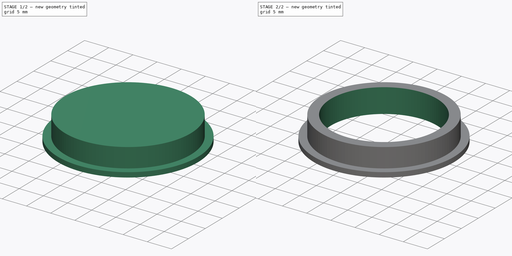
[diagram: build sequence overview — one tinted view per stage of 2, left to right]
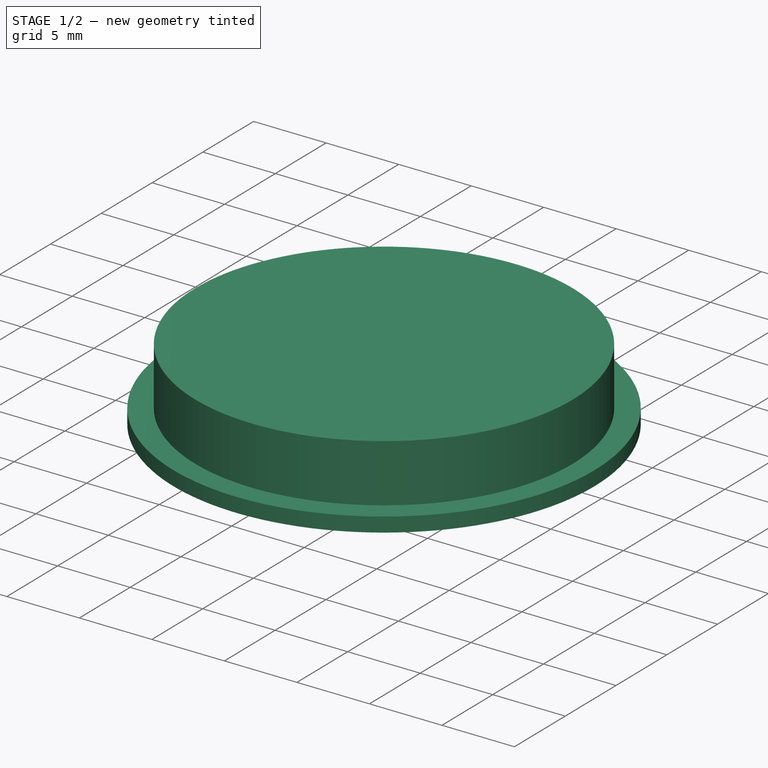
[diagram: stage 1 of 2 — iso view after this stage's code; geometry added in this stage tinted green]
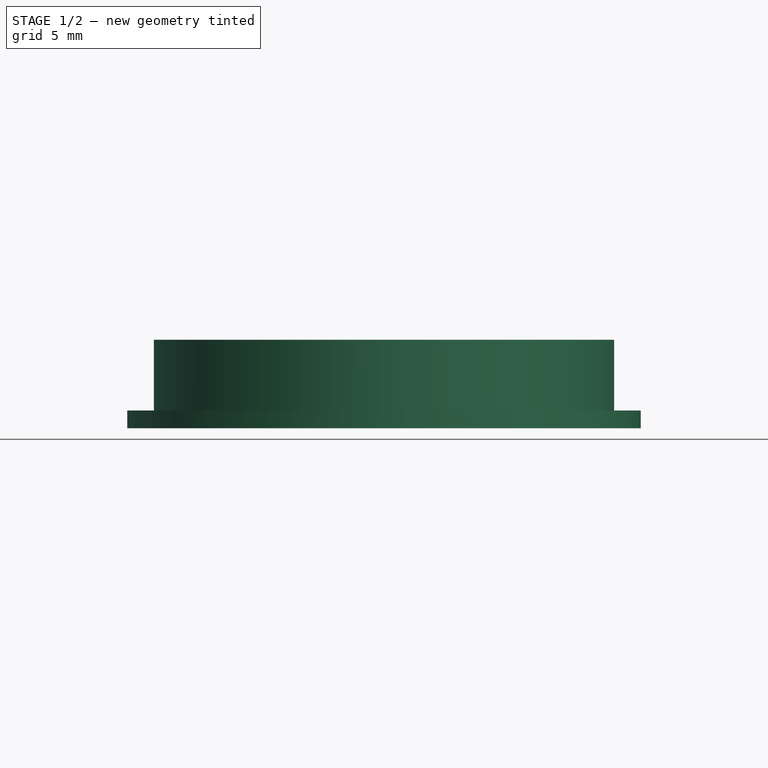
[diagram: stage 1 of 2 — front view after this stage's code; geometry added in this stage tinted green]
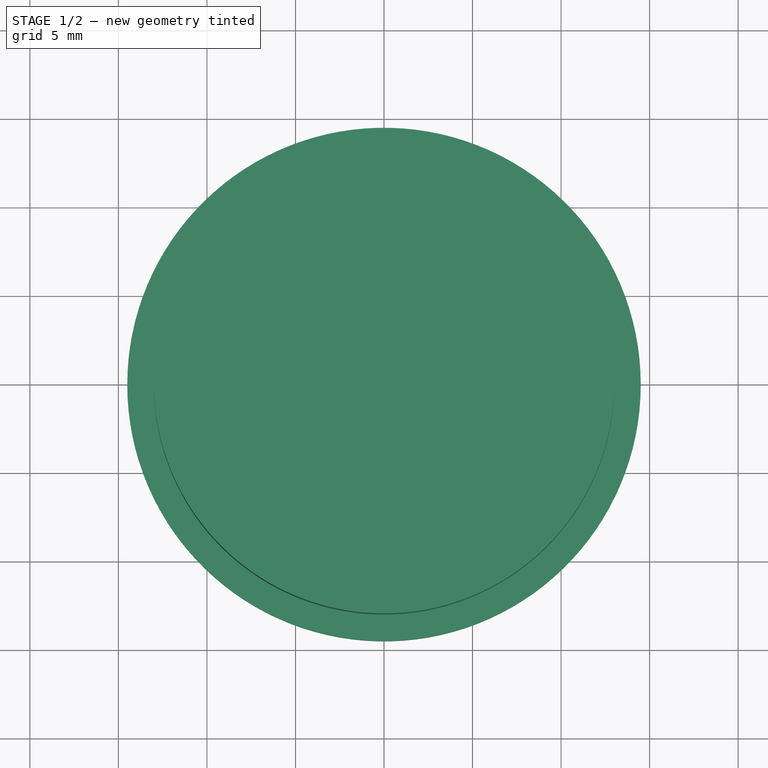
[diagram: stage 1 of 2 — top view after this stage's code; geometry added in this stage tinted green]
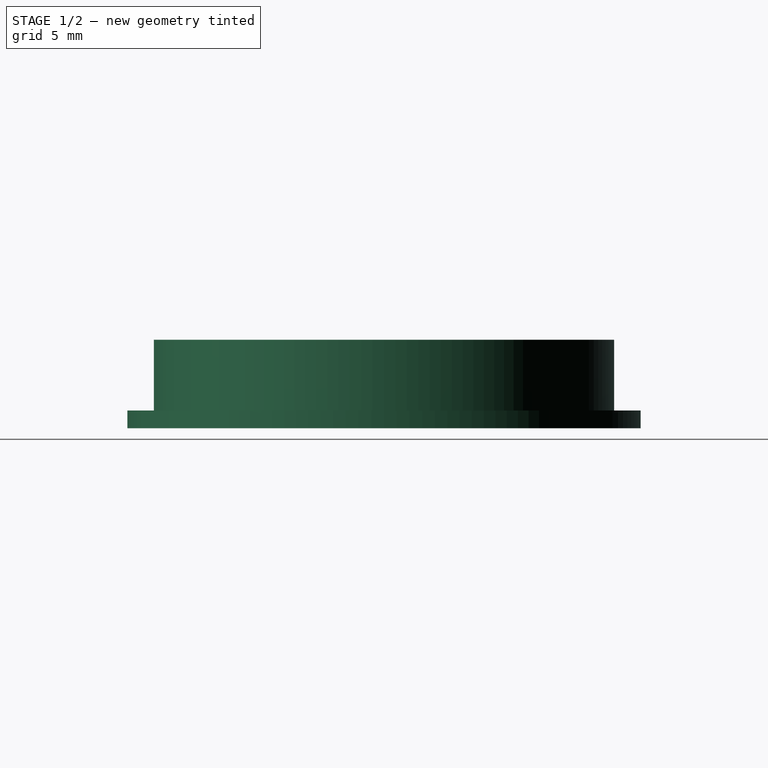
[diagram: stage 1 of 2 — right view after this stage's code; geometry added in this stage tinted green]
FCSTD DOCUMENT  (FreeCAD 0.16R6706 (Git))
Label: Montagering
License: All rights reserved
LicenseURL: http://de.wikipedia.org/wiki/Alle_Rechte_vorbehalten
objects: Sketcher::SketchObject×3, PartDesign::Pad×2, PartDesign::Pocket×1
note: 9 computed .brp shape members not serialized (recipe doc carries the construction recipe); baked Part::Feature solids carry a one-line shape summary decoded from their .brp

FEATURE [Sketcher::SketchObject] Sketch
  sketch-geometry (1):
    g0: Circle CenterX=0 CenterY=0 CenterZ=0 NormalX=0 NormalY=0 NormalZ=1 Radius=14.5
  constraints (2):
    c: Coincident(g0,g-1)
    c: Radius(g0) = 14.5
FEATURE [PartDesign::Pad] Pad
  Length = 1
  Length2 = 100
  Sketch = -> Sketch
  Type = 0
FEATURE [Sketcher::SketchObject] Sketch001
  Placement = pos=(0,0,1) rot=(0,0,1;0rad)
  Support = -> Pad [Face3]
  sketch-geometry (1):
    g0: Circle CenterX=0 CenterY=0 CenterZ=0 NormalX=0 NormalY=0 NormalZ=1 Radius=13
  constraints (2):
    c: Coincident(g0,g-1)
    c: Radius(g0) = 13
FEATURE [PartDesign::Pad] Pad001
  Length = 4
  Length2 = 100
  Sketch = -> Sketch001
  Type = 0
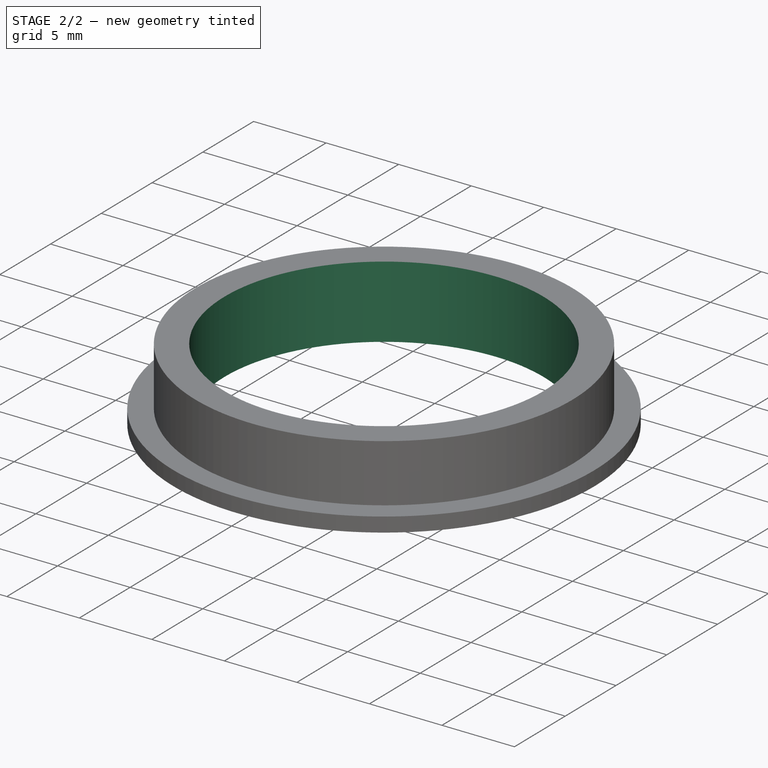
[diagram: stage 2 of 2 — iso view after this stage's code; geometry added in this stage tinted green]
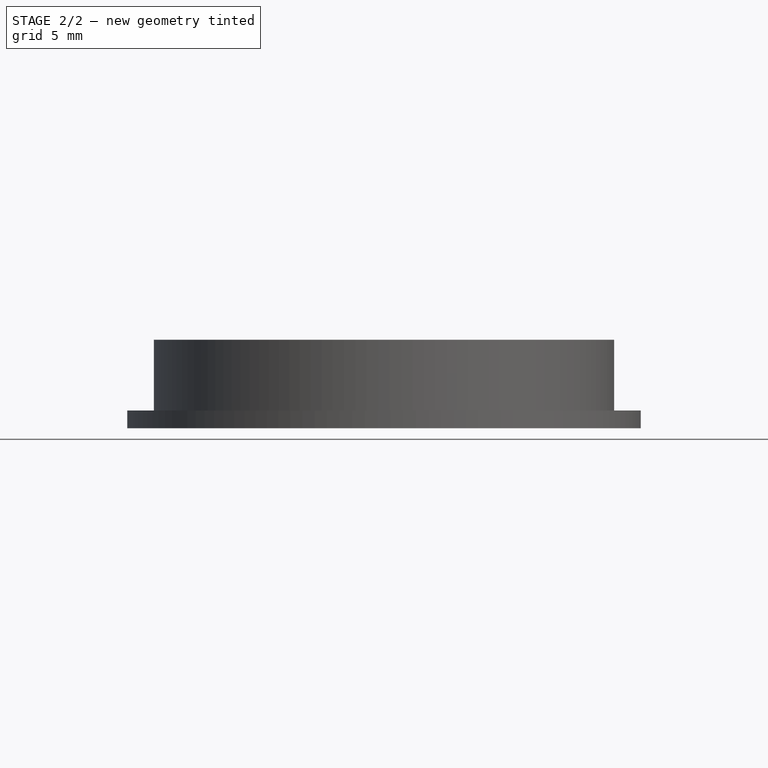
[diagram: stage 2 of 2 — front view after this stage's code; geometry added in this stage tinted green]
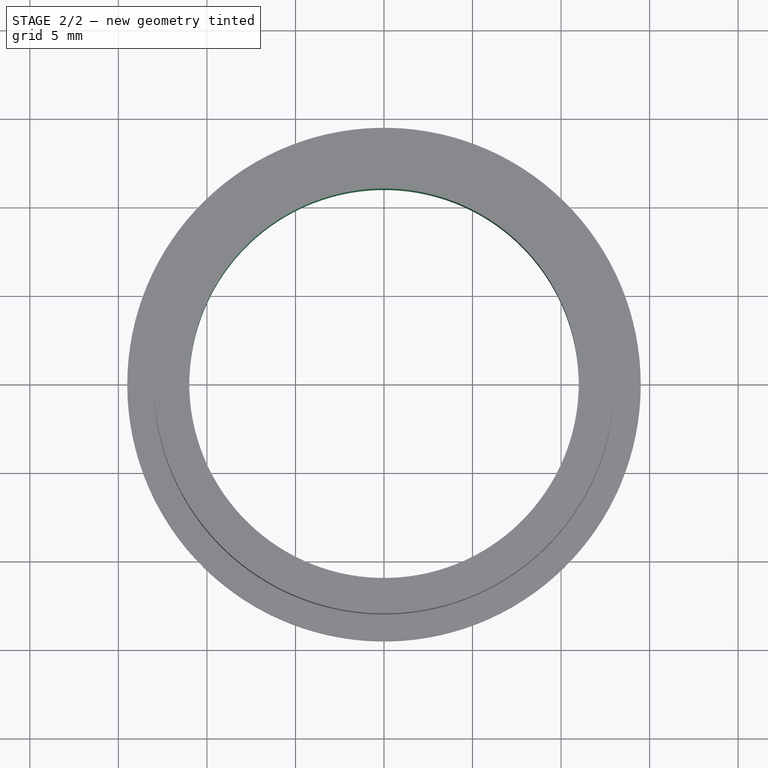
[diagram: stage 2 of 2 — top view after this stage's code; geometry added in this stage tinted green]
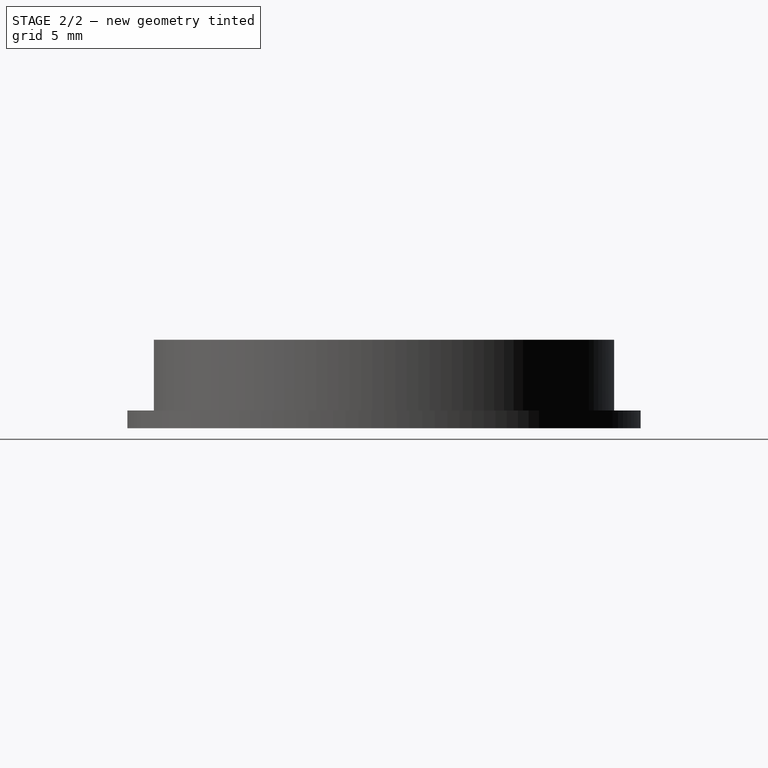
[diagram: stage 2 of 2 — right view after this stage's code; geometry added in this stage tinted green]
FEATURE [Sketcher::SketchObject] Sketch002
  Placement = pos=(0,0,5) rot=(0,0,1;0rad)
  Support = -> Pad001 [Face5]
  sketch-geometry (1):
    g0: Circle CenterX=0 CenterY=0 CenterZ=0 NormalX=0 NormalY=0 NormalZ=1 Radius=11
  constraints (2):
    c: Coincident(g0,g-1)
    c: Radius(g0) = 11
FEATURE [PartDesign::Pocket] Pocket
  Length = 5
  Sketch = -> Sketch002
  Type = 0
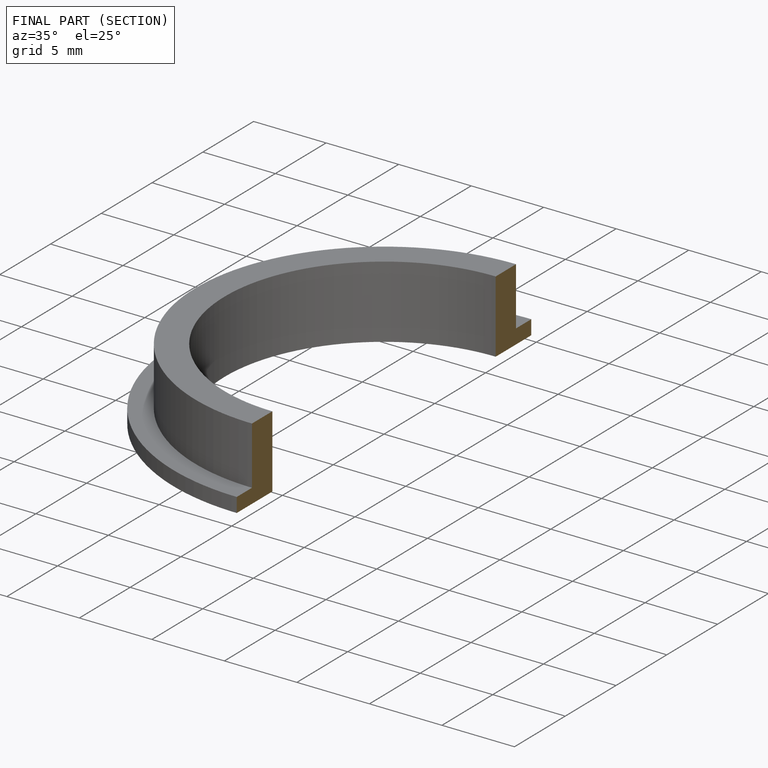
[diagram: finished part — half-section view (interior)]
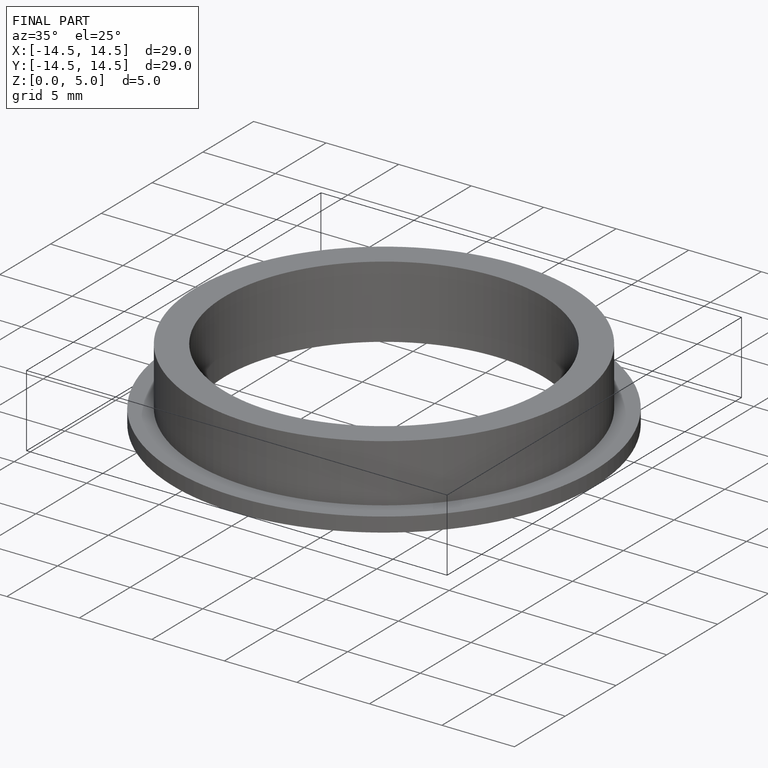
[diagram: finished part — iso view with bounding-box wireframe]
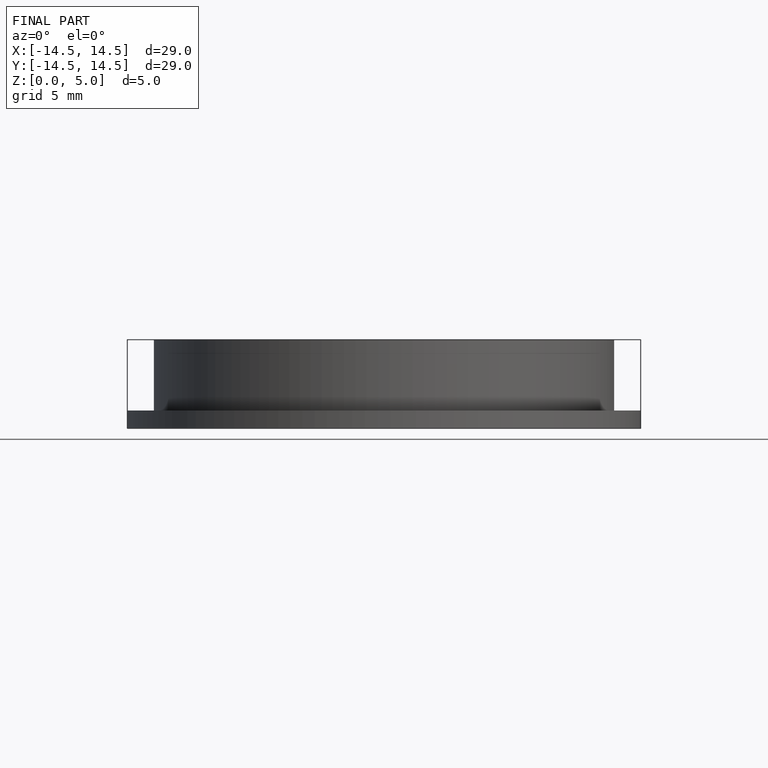
[diagram: finished part — front view with bounding-box wireframe]
